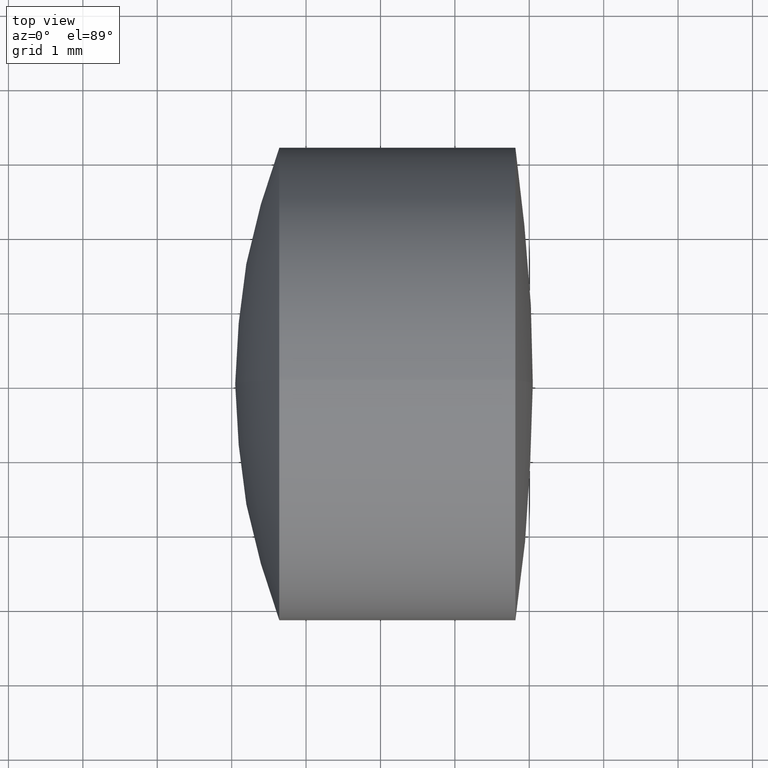
[diagram: clean part render]
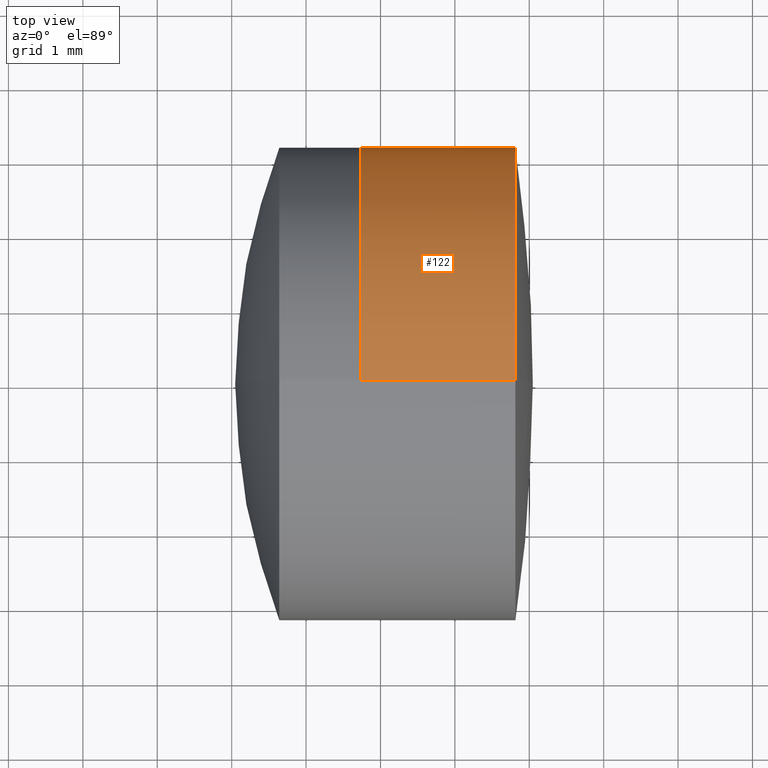
[diagram: same view with one face highlighted and labeled with its STEP entity id]
A machine part, top view. The second image highlights one B-rep face of the part: STEP entity #122.
In plain terms, the highlighted cylindrical surface (partial cylindrical patch) has radius 3.175 mm, axis along (-1, -0, -0).
Its self-contained STEP definition (entity closure, byte-faithful):
#1 = VECTOR ( 'NONE', #223, 1000.000000000000000 ) ;
#2 = DIRECTION ( 'NONE',  ( -1.000000000000000000, -0.0000000000000000000, -0.0000000000000000000 ) ) ;
#13 = ORIENTED_EDGE ( 'NONE', *, *, #86, .F. ) ;
#22 = CYLINDRICAL_SURFACE ( 'NONE', #217, 3.175000000000001600 ) ;
#23 = VERTEX_POINT ( 'NONE', #201 ) ;
#24 = VECTOR ( 'NONE', #28, 1000.000000000000000 ) ;
#26 = CARTESIAN_POINT ( 'NONE',  ( 2.813910375090960900, 3.888253587292846100E-016, -3.174999999999998000 ) ) ;
#28 = DIRECTION ( 'NONE',  ( -1.000000000000000000, -0.0000000000000000000, -0.0000000000000000000 ) ) ;
#29 = CARTESIAN_POINT ( 'NONE',  ( 0.7335758746331534400, 0.0000000000000000000, 3.175000000000004700 ) ) ;
#67 = EDGE_CURVE ( 'NONE', #23, #343, #279, .T. ) ;
#82 = DIRECTION ( 'NONE',  ( -1.000000000000000000, -0.0000000000000000000, -0.0000000000000000000 ) ) ;
#86 = EDGE_CURVE ( 'NONE', #343, #323, #261, .T. ) ;
#100 = EDGE_CURVE ( 'NONE', #138, #323, #326, .T. ) ;
#109 = CARTESIAN_POINT ( 'NONE',  ( -0.5519199926577972300, 3.888253587292848100E-016, -3.175000000000001600 ) ) ;
#121 = ORIENTED_EDGE ( 'NONE', *, *, #100, .T. ) ;
#122 = ADVANCED_FACE ( 'NONE', ( #238 ), #22, .T. ) ;
#137 = CARTESIAN_POINT ( 'NONE',  ( -0.5519199926577972300, 0.0000000000000000000, 0.0000000000000000000 ) ) ;
#138 = VERTEX_POINT ( 'NONE', #26 ) ;
#142 = EDGE_CURVE ( 'NONE', #23, #138, #309, .T. ) ;
#159 = DIRECTION ( 'NONE',  ( 0.0000000000000000000, 0.0000000000000000000, 1.000000000000000000 ) ) ;
#168 = DIRECTION ( 'NONE',  ( 0.0000000000000000000, 0.0000000000000000000, 1.000000000000000000 ) ) ;
#188 = CARTESIAN_POINT ( 'NONE',  ( 2.813910375090960900, 0.0000000000000000000, 0.0000000000000000000 ) ) ;
#201 = CARTESIAN_POINT ( 'NONE',  ( 2.813910375090960900, 0.0000000000000000000, 3.174999999999998000 ) ) ;
#217 = AXIS2_PLACEMENT_3D ( 'NONE', #137, #313, #168 ) ;
#223 = DIRECTION ( 'NONE',  ( -1.000000000000000000, -0.0000000000000000000, -0.0000000000000000000 ) ) ;
#238 = FACE_OUTER_BOUND ( 'NONE', #302, .T. ) ;
#243 = ORIENTED_EDGE ( 'NONE', *, *, #67, .F. ) ;
#253 = DIRECTION ( 'NONE',  ( 0.0000000000000000000, 0.0000000000000000000, 1.000000000000000000 ) ) ;
#261 = CIRCLE ( 'NONE', #330, 3.175000000000004700 ) ;
#279 = LINE ( 'NONE', #295, #1 ) ;
#281 = ORIENTED_EDGE ( 'NONE', *, *, #142, .T. ) ;
#283 = AXIS2_PLACEMENT_3D ( 'NONE', #188, #2, #159 ) ;
#290 = CARTESIAN_POINT ( 'NONE',  ( 0.7335758746331534400, 0.0000000000000000000, 0.0000000000000000000 ) ) ;
#291 = CARTESIAN_POINT ( 'NONE',  ( 0.7335758746331534400, 3.888253587292852000E-016, -3.175000000000004700 ) ) ;
#295 = CARTESIAN_POINT ( 'NONE',  ( -0.5519199926577972300, 0.0000000000000000000, 3.175000000000001600 ) ) ;
#302 = EDGE_LOOP ( 'NONE', ( #281, #121, #13, #243 ) ) ;
#309 = CIRCLE ( 'NONE', #283, 3.174999999999998000 ) ;
#313 = DIRECTION ( 'NONE',  ( -1.000000000000000000, -0.0000000000000000000, -0.0000000000000000000 ) ) ;
#323 = VERTEX_POINT ( 'NONE', #291 ) ;
#326 = LINE ( 'NONE', #109, #24 ) ;
#330 = AXIS2_PLACEMENT_3D ( 'NONE', #290, #82, #253 ) ;
#343 = VERTEX_POINT ( 'NONE', #29 ) ;